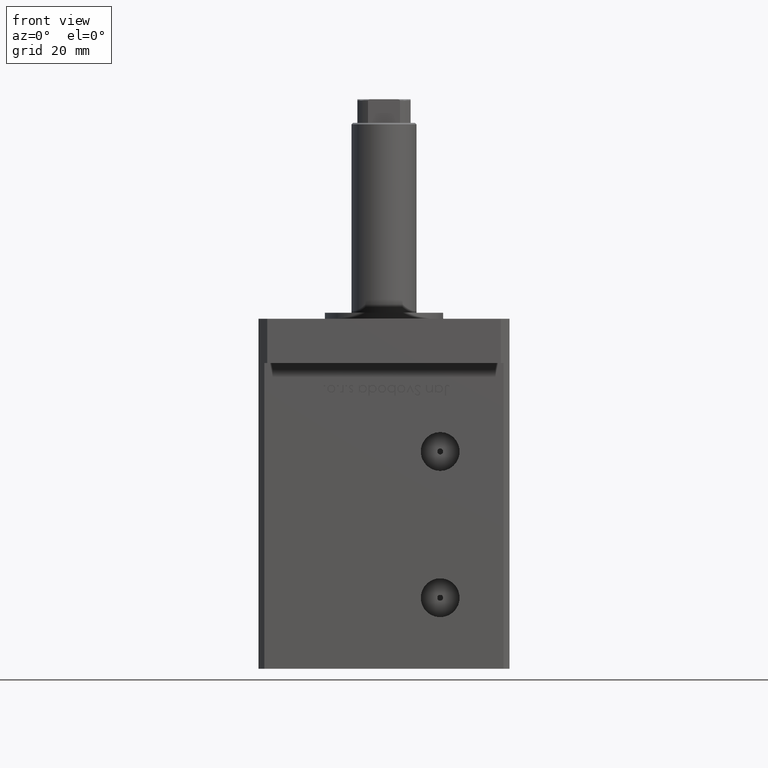
[diagram: clean part render]
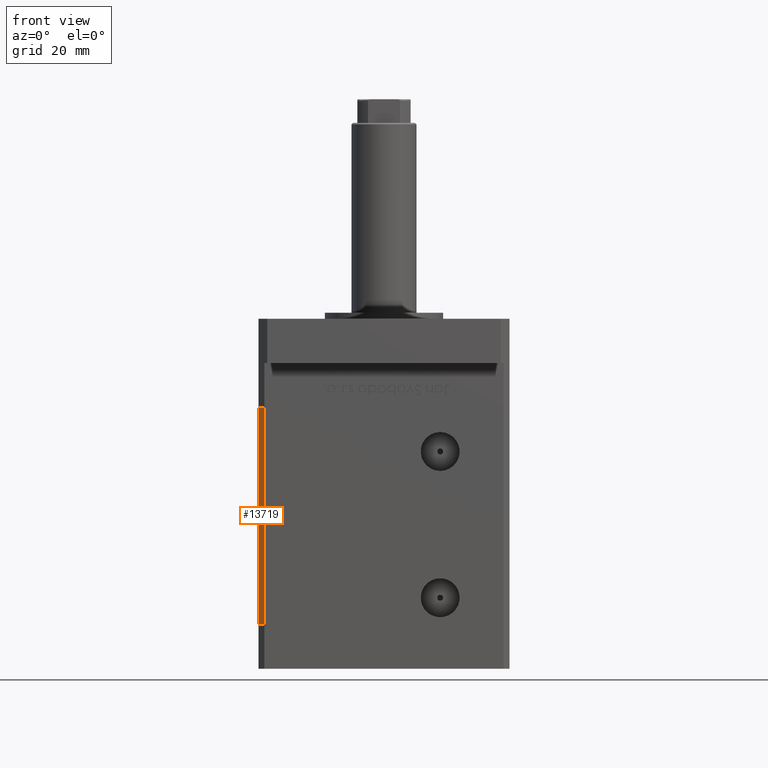
[diagram: same view with one face highlighted and labeled with its STEP entity id]
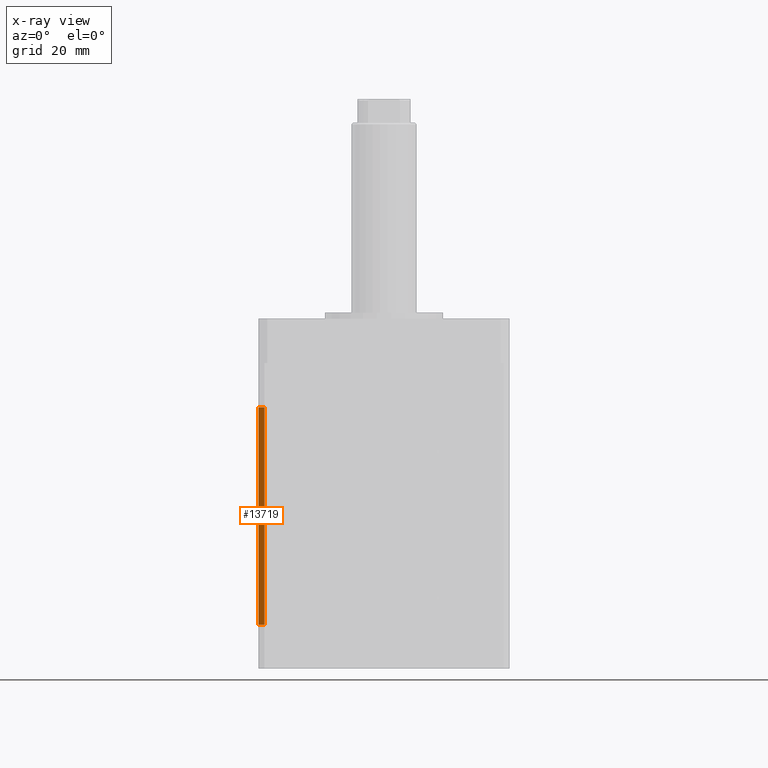
[diagram: x-ray of the same camera — body ghosted, the highlighted face saturated]
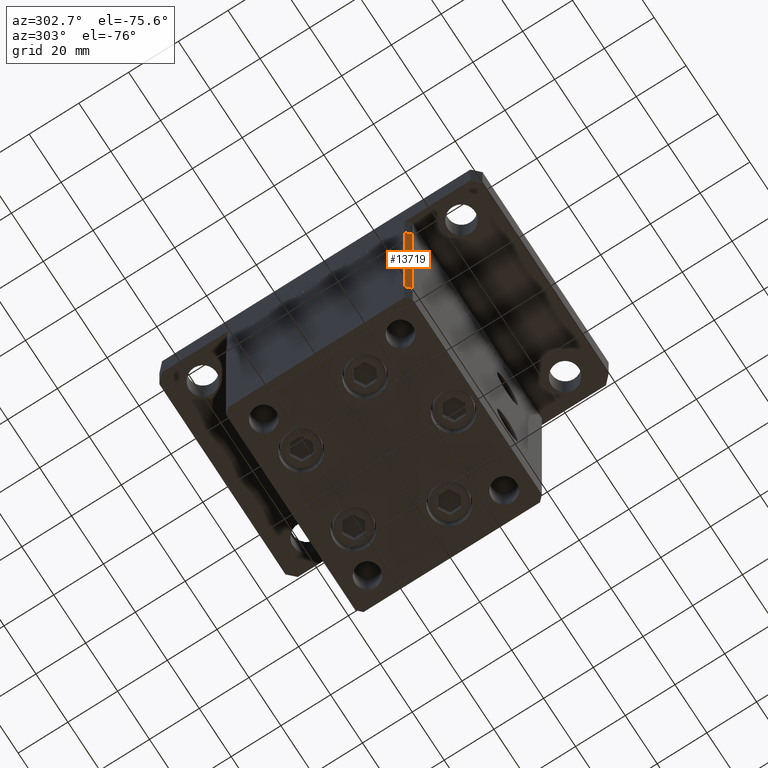
[diagram: same view with one face highlighted and labeled with its STEP entity id]
A machine part, front view. The second image highlights one B-rep face of the part: STEP entity #13719.
The next image is the same camera in x-ray: the body ghosted, the highlighted face saturated — about 0% of this face is hidden behind the body in this view.
A second angle (auxiliary view) of the same face is appended — the face is thin or edge-on in the first view.
In plain terms, the highlighted planar face has unit normal (0.7071, 0.7071, 0).
Its self-contained STEP definition (entity closure, byte-faithful):
#2155 = PLANE ( 'NONE',  #30958 ) ;
#5453 = EDGE_LOOP ( 'NONE', ( #9971, #7117, #42486, #15648 ) ) ;
#5623 = VERTEX_POINT ( 'NONE', #42632 ) ;
#7117 = ORIENTED_EDGE ( 'NONE', *, *, #40132, .F. ) ;
#7509 = CARTESIAN_POINT ( 'NONE',  ( -42.49999999999998579, -35.50000000000000711, 73.50000000000000000 ) ) ;
#8396 = VECTOR ( 'NONE', #30001, 1000.000000000000000 ) ;
#9971 = ORIENTED_EDGE ( 'NONE', *, *, #45581, .T. ) ;
#12499 = CARTESIAN_POINT ( 'NONE',  ( -42.49999999999998579, -35.50000000000000711, 0.000000000000000000 ) ) ;
#12778 = VECTOR ( 'NONE', #28411, 1000.000000000000114 ) ;
#13432 = LINE ( 'NONE', #26746, #8396 ) ;
#13719 = ADVANCED_FACE ( 'NONE', ( #46918 ), #2155, .F. ) ;
#14634 = CARTESIAN_POINT ( 'NONE',  ( -42.49999999999998579, -35.50000000000000711, 73.50000000000000000 ) ) ;
#15350 = LINE ( 'NONE', #52274, #24258 ) ;
#15648 = ORIENTED_EDGE ( 'NONE', *, *, #34599, .T. ) ;
#16093 = VERTEX_POINT ( 'NONE', #12499 ) ;
#18414 = DIRECTION ( 'NONE',  ( 0.7071067811865475727, 0.7071067811865475727, -0.000000000000000000 ) ) ;
#22559 = DIRECTION ( 'NONE',  ( -0.000000000000000000, -0.000000000000000000, -1.000000000000000000 ) ) ;
#24258 = VECTOR ( 'NONE', #40592, 1000.000000000000114 ) ;
#26630 = LINE ( 'NONE', #38555, #46566 ) ;
#26746 = CARTESIAN_POINT ( 'NONE',  ( -42.49999999999998579, -35.50000000000000711, 73.50000000000000000 ) ) ;
#28411 = DIRECTION ( 'NONE',  ( 0.7071067811865474617, -0.7071067811865474617, 0.000000000000000000 ) ) ;
#29413 = CARTESIAN_POINT ( 'NONE',  ( -40.49999999999998579, -37.50000000000000711, 0.000000000000000000 ) ) ;
#30001 = DIRECTION ( 'NONE',  ( -0.000000000000000000, -0.000000000000000000, -1.000000000000000000 ) ) ;
#30958 = AXIS2_PLACEMENT_3D ( 'NONE', #14634, #18414, #35525 ) ;
#34599 = EDGE_CURVE ( 'NONE', #34894, #16093, #13432, .T. ) ;
#34894 = VERTEX_POINT ( 'NONE', #42973 ) ;
#35525 = DIRECTION ( 'NONE',  ( -0.7071067811865474617, 0.7071067811865474617, 0.000000000000000000 ) ) ;
#38555 = CARTESIAN_POINT ( 'NONE',  ( -40.49999999999998579, -37.50000000000000711, 73.50000000000000000 ) ) ;
#38950 = VERTEX_POINT ( 'NONE', #29413 ) ;
#39330 = EDGE_CURVE ( 'NONE', #34894, #5623, #40869, .T. ) ;
#40132 = EDGE_CURVE ( 'NONE', #5623, #38950, #26630, .T. ) ;
#40592 = DIRECTION ( 'NONE',  ( 0.7071067811865474617, -0.7071067811865474617, 0.000000000000000000 ) ) ;
#40869 = LINE ( 'NONE', #7509, #12778 ) ;
#42486 = ORIENTED_EDGE ( 'NONE', *, *, #39330, .F. ) ;
#42632 = CARTESIAN_POINT ( 'NONE',  ( -40.49999999999998579, -37.50000000000000711, 73.50000000000000000 ) ) ;
#42973 = CARTESIAN_POINT ( 'NONE',  ( -42.49999999999998579, -35.50000000000000711, 73.50000000000000000 ) ) ;
#45581 = EDGE_CURVE ( 'NONE', #16093, #38950, #15350, .T. ) ;
#46566 = VECTOR ( 'NONE', #22559, 1000.000000000000000 ) ;
#46918 = FACE_OUTER_BOUND ( 'NONE', #5453, .T. ) ;
#52274 = CARTESIAN_POINT ( 'NONE',  ( -42.49999999999998579, -35.50000000000000711, 0.000000000000000000 ) ) ;